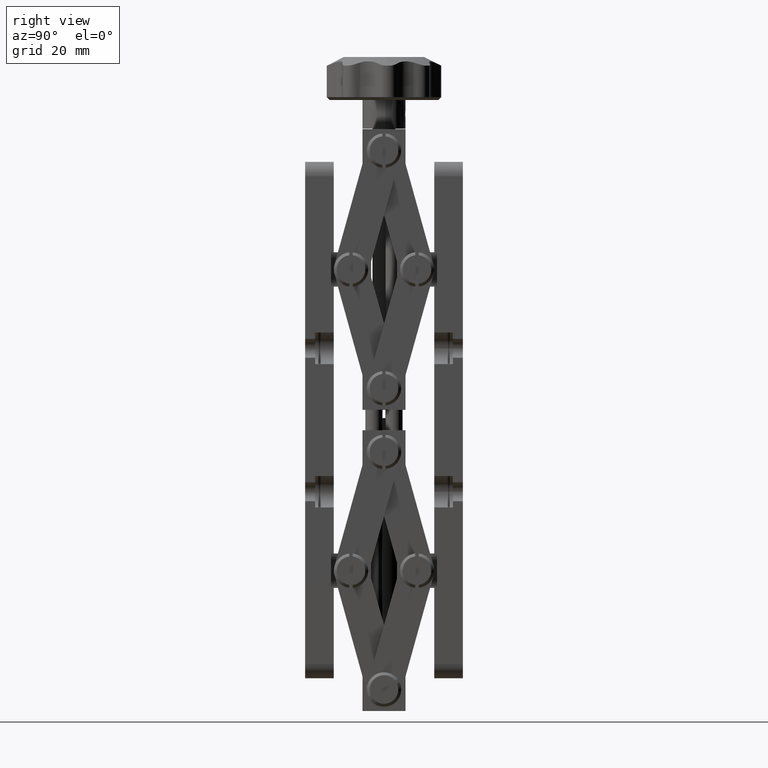
[diagram: clean part render]
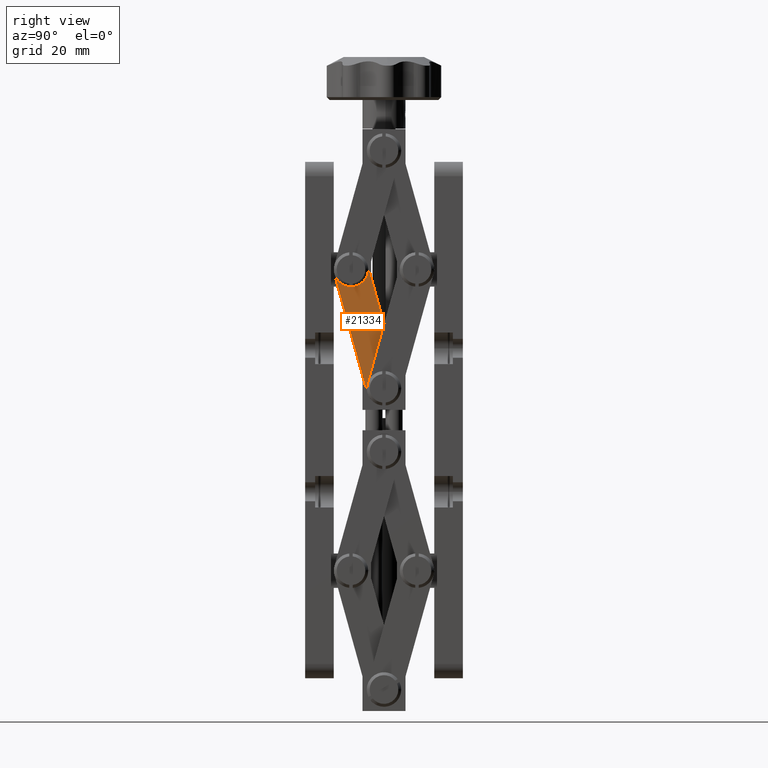
[diagram: same view with one face highlighted and labeled with its STEP entity id]
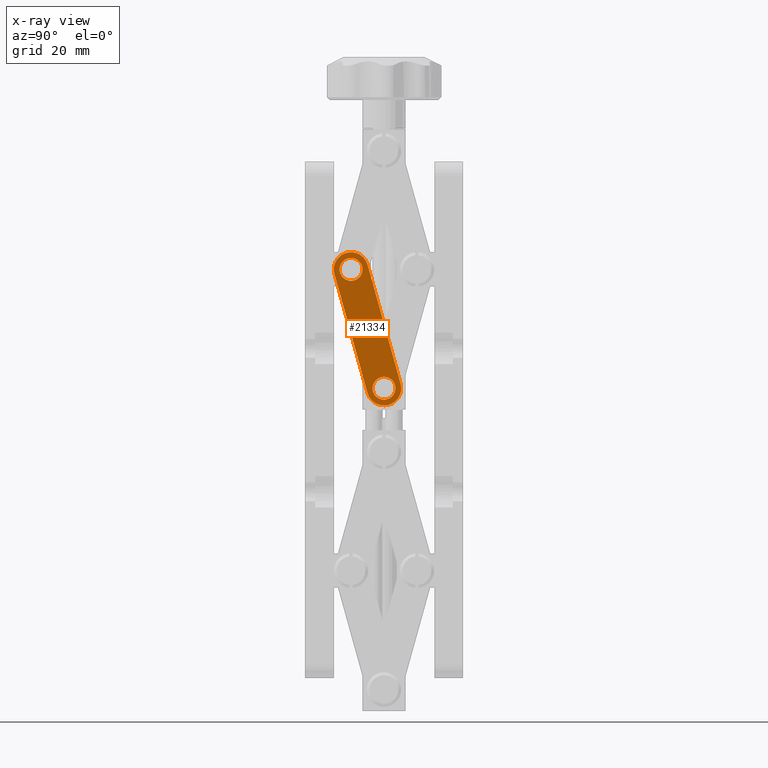
[diagram: x-ray of the same camera — body ghosted, the highlighted face saturated]
A machine part, right view. The second image highlights one B-rep face of the part: STEP entity #21334.
The next image is the same camera in x-ray: the body ghosted, the highlighted face saturated — about 0% of this face is hidden behind the body in this view.
In plain terms, the highlighted planar face has unit normal (-1, -0, 0).
Its self-contained STEP definition (entity closure, byte-faithful):
#110 = DIRECTION ( 'NONE',  ( 0.0000000000000000000, -0.2674418604650579700, 0.9635739988558161800 ) ) ;
#949 = CARTESIAN_POINT ( 'NONE',  ( 40.00000000000022000, 11.78144399313752500, 54.10465116279066000 ) ) ;
#1081 = CARTESIAN_POINT ( 'NONE',  ( 40.00000000000008500, 6.000000000002502900, 52.50000000000021300 ) ) ;
#1495 = CIRCLE ( 'NONE', #4313, 6.000000000000130600 ) ;
#1577 = ORIENTED_EDGE ( 'NONE', *, *, #8189, .F. ) ;
#1611 = CARTESIAN_POINT ( 'NONE',  ( 39.99999999999998600, 23.28144399313513400, 12.67096921198969100 ) ) ;
#1688 = AXIS2_PLACEMENT_3D ( 'NONE', #1081, #14963, #3088 ) ;
#2156 = VECTOR ( 'NONE', #22707, 1000.000000000000000 ) ;
#2711 = EDGE_CURVE ( 'NONE', #12670, #22734, #3789, .T. ) ;
#2811 = CARTESIAN_POINT ( 'NONE',  ( 40.00000000000024200, 18.56976744186048100, 7.212022053775912800 ) ) ;
#3088 = DIRECTION ( 'NONE',  ( 0.0000000000000000000, -0.2674418604650579700, 0.9635739988558161800 ) ) ;
#3151 = DIRECTION ( 'NONE',  ( -1.000000000000000000, -2.653436370313745700E-019, 6.031150723361699400E-019 ) ) ;
#3154 = CARTESIAN_POINT ( 'NONE',  ( 40.00000000000008500, 6.000000000002502900, 52.50000000000021300 ) ) ;
#3622 = CARTESIAN_POINT ( 'NONE',  ( 40.00000000000024200, 16.43023255813996600, 14.92061404462261000 ) ) ;
#3652 = EDGE_CURVE ( 'NONE', #14826, #7900, #18386, .T. ) ;
#3789 = CIRCLE ( 'NONE', #1688, 4.000000000000087000 ) ;
#3839 = VERTEX_POINT ( 'NONE', #2811 ) ;
#4313 = AXIS2_PLACEMENT_3D ( 'NONE', #11354, #25296, #13376 ) ;
#4484 = EDGE_LOOP ( 'NONE', ( #13687, #15267 ) ) ;
#4888 = DIRECTION ( 'NONE',  ( 6.521099979776225800E-019, -0.2674418604650579100, 0.9635739988558161800 ) ) ;
#4985 = CARTESIAN_POINT ( 'NONE',  ( 40.00000000000008500, 6.000000000002502900, 52.50000000000021300 ) ) ;
#5152 = CARTESIAN_POINT ( 'NONE',  ( 40.00000000000008500, 7.069767441862759400, 48.64570400457686400 ) ) ;
#5423 = ORIENTED_EDGE ( 'NONE', *, *, #15729, .F. ) ;
#6158 = FACE_BOUND ( 'NONE', #4484, .T. ) ;
#6321 = EDGE_LOOP ( 'NONE', ( #5423, #18812, #1577, #14150, #7285 ) ) ;
#6713 = CARTESIAN_POINT ( 'NONE',  ( 40.00000000000024200, 19.10465116279052500, 5.284874056064349900 ) ) ;
#6751 = ORIENTED_EDGE ( 'NONE', *, *, #25684, .F. ) ;
#6755 = FACE_OUTER_BOUND ( 'NONE', #6321, .T. ) ;
#6821 = EDGE_CURVE ( 'NONE', #20204, #3839, #24696, .T. ) ;
#6884 = AXIS2_PLACEMENT_3D ( 'NONE', #15218, #3151, #23183 ) ;
#7285 = ORIENTED_EDGE ( 'NONE', *, *, #3652, .F. ) ;
#7655 = DIRECTION ( 'NONE',  ( -6.521099979776226700E-019, 0.2674418604650579700, -0.9635739988558161800 ) ) ;
#7817 = VECTOR ( 'NONE', #7655, 1000.000000000000000 ) ;
#7900 = VERTEX_POINT ( 'NONE', #23835 ) ;
#8047 = CARTESIAN_POINT ( 'NONE',  ( 40.00000000000008500, 4.930232558142248100, 56.35429599542356300 ) ) ;
#8075 = CIRCLE ( 'NONE', #16007, 4.000000000000087000 ) ;
#8094 = CARTESIAN_POINT ( 'NONE',  ( 40.00000000000024200, 17.50000000000022400, 11.06631804919926100 ) ) ;
#8178 = AXIS2_PLACEMENT_3D ( 'NONE', #4985, #18620, #4888 ) ;
#8189 = EDGE_CURVE ( 'NONE', #8878, #25139, #1495, .T. ) ;
#8878 = VERTEX_POINT ( 'NONE', #6713 ) ;
#9406 = CARTESIAN_POINT ( 'NONE',  ( 40.00000000000015600, 11.71855600686514800, 9.461666886409037900 ) ) ;
#10115 = CARTESIAN_POINT ( 'NONE',  ( 40.00000000000024200, 17.50000000000022400, 11.06631804919926100 ) ) ;
#10628 = PLANE ( 'NONE',  #8178 ) ;
#11017 = CIRCLE ( 'NONE', #13053, 4.000000000000087000 ) ;
#11354 = CARTESIAN_POINT ( 'NONE',  ( 40.00000000000024200, 17.50000000000022400, 11.06631804919926100 ) ) ;
#11406 = FACE_BOUND ( 'NONE', #16685, .T. ) ;
#11915 = ORIENTED_EDGE ( 'NONE', *, *, #2711, .F. ) ;
#12226 = DIRECTION ( 'NONE',  ( 0.0000000000000000000, -0.2674418604650581900, 0.9635739988558161800 ) ) ;
#12495 = VERTEX_POINT ( 'NONE', #16619 ) ;
#12670 = VERTEX_POINT ( 'NONE', #8047 ) ;
#13053 = AXIS2_PLACEMENT_3D ( 'NONE', #21263, #21697, #110 ) ;
#13271 = CIRCLE ( 'NONE', #21653, 6.000000000000130600 ) ;
#13376 = DIRECTION ( 'NONE',  ( 0.0000000000000000000, -0.2674418604650581300, 0.9635739988558160700 ) ) ;
#13687 = ORIENTED_EDGE ( 'NONE', *, *, #6821, .F. ) ;
#14150 = ORIENTED_EDGE ( 'NONE', *, *, #25522, .F. ) ;
#14306 = DIRECTION ( 'NONE',  ( 0.0000000000000000000, -0.2674418604650581900, 0.9635739988558161800 ) ) ;
#14826 = VERTEX_POINT ( 'NONE', #949 ) ;
#14919 = EDGE_CURVE ( 'NONE', #3839, #20204, #8075, .T. ) ;
#14963 = DIRECTION ( 'NONE',  ( 1.000000000000000000, 2.653436370313745700E-019, -6.031150723361699400E-019 ) ) ;
#15218 = CARTESIAN_POINT ( 'NONE',  ( 40.00000000000024200, 17.50000000000022400, 11.06631804919926100 ) ) ;
#15267 = ORIENTED_EDGE ( 'NONE', *, *, #14919, .F. ) ;
#15729 = EDGE_CURVE ( 'NONE', #12495, #14826, #13271, .T. ) ;
#16007 = AXIS2_PLACEMENT_3D ( 'NONE', #10115, #24298, #14306 ) ;
#16619 = CARTESIAN_POINT ( 'NONE',  ( 40.00000000000015600, 0.2185560068674076400, 50.89534883720983800 ) ) ;
#16685 = EDGE_LOOP ( 'NONE', ( #11915, #6751 ) ) ;
#18386 = LINE ( 'NONE', #1611, #7817 ) ;
#18620 = DIRECTION ( 'NONE',  ( -1.000000000000000000, -2.653436370330349700E-019, 6.031150723421524600E-019 ) ) ;
#18812 = ORIENTED_EDGE ( 'NONE', *, *, #21319, .F. ) ;
#20204 = VERTEX_POINT ( 'NONE', #3622 ) ;
#21263 = CARTESIAN_POINT ( 'NONE',  ( 40.00000000000008500, 6.000000000002502900, 52.50000000000021300 ) ) ;
#21319 = EDGE_CURVE ( 'NONE', #25139, #12495, #25126, .T. ) ;
#21334 = ADVANCED_FACE ( 'NONE', ( #11406, #6158, #6755 ), #10628, .F. ) ;
#21653 = AXIS2_PLACEMENT_3D ( 'NONE', #3154, #23109, #23192 ) ;
#21697 = DIRECTION ( 'NONE',  ( 1.000000000000000000, 2.653436370313745700E-019, -6.031150723361699400E-019 ) ) ;
#21961 = DIRECTION ( 'NONE',  ( 1.000000000000000000, 2.653436370313745700E-019, -6.031150723361699400E-019 ) ) ;
#22707 = DIRECTION ( 'NONE',  ( 6.521099979776226700E-019, -0.2674418604650579700, 0.9635739988558161800 ) ) ;
#22734 = VERTEX_POINT ( 'NONE', #5152 ) ;
#23067 = AXIS2_PLACEMENT_3D ( 'NONE', #8094, #21961, #12226 ) ;
#23109 = DIRECTION ( 'NONE',  ( -1.000000000000000000, -2.653436370313745700E-019, 6.031150723361699400E-019 ) ) ;
#23183 = DIRECTION ( 'NONE',  ( 0.0000000000000000000, -0.2674418604650581300, 0.9635739988558160700 ) ) ;
#23192 = DIRECTION ( 'NONE',  ( 0.0000000000000000000, -0.2674418604650580200, 0.9635739988558160700 ) ) ;
#23835 = CARTESIAN_POINT ( 'NONE',  ( 39.99999999999998600, 23.28144399313513400, 12.67096921198969100 ) ) ;
#24037 = CARTESIAN_POINT ( 'NONE',  ( 40.00000000000015600, 11.71855600686514800, 9.461666886409037900 ) ) ;
#24298 = DIRECTION ( 'NONE',  ( 1.000000000000000000, 2.653436370313745700E-019, -6.031150723361699400E-019 ) ) ;
#24696 = CIRCLE ( 'NONE', #23067, 4.000000000000087000 ) ;
#25126 = LINE ( 'NONE', #24037, #2156 ) ;
#25139 = VERTEX_POINT ( 'NONE', #9406 ) ;
#25296 = DIRECTION ( 'NONE',  ( -1.000000000000000000, -2.653436370313745700E-019, 6.031150723361699400E-019 ) ) ;
#25522 = EDGE_CURVE ( 'NONE', #7900, #8878, #25668, .T. ) ;
#25668 = CIRCLE ( 'NONE', #6884, 6.000000000000130600 ) ;
#25684 = EDGE_CURVE ( 'NONE', #22734, #12670, #11017, .T. ) ;